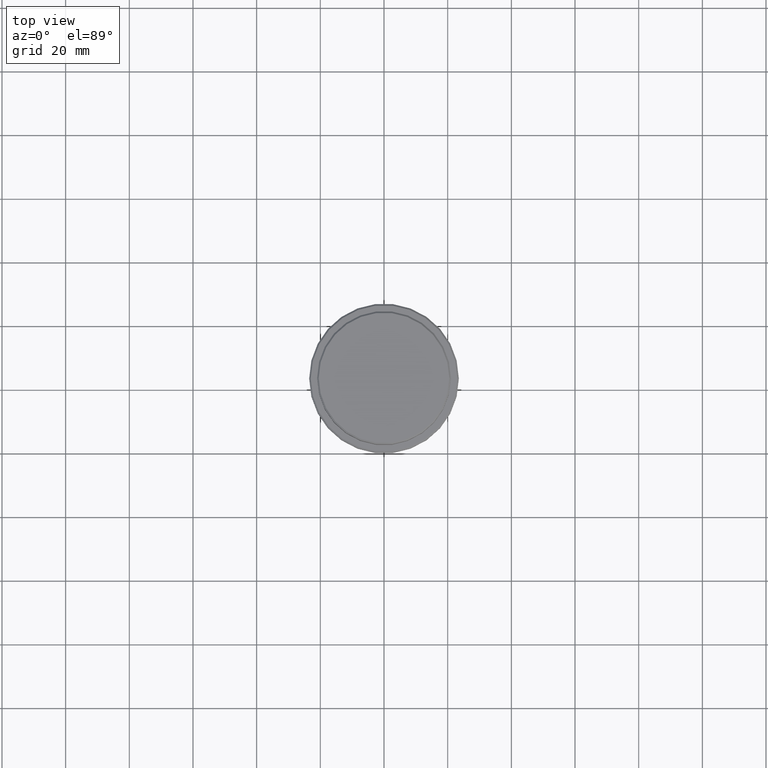
[diagram: clean part render]
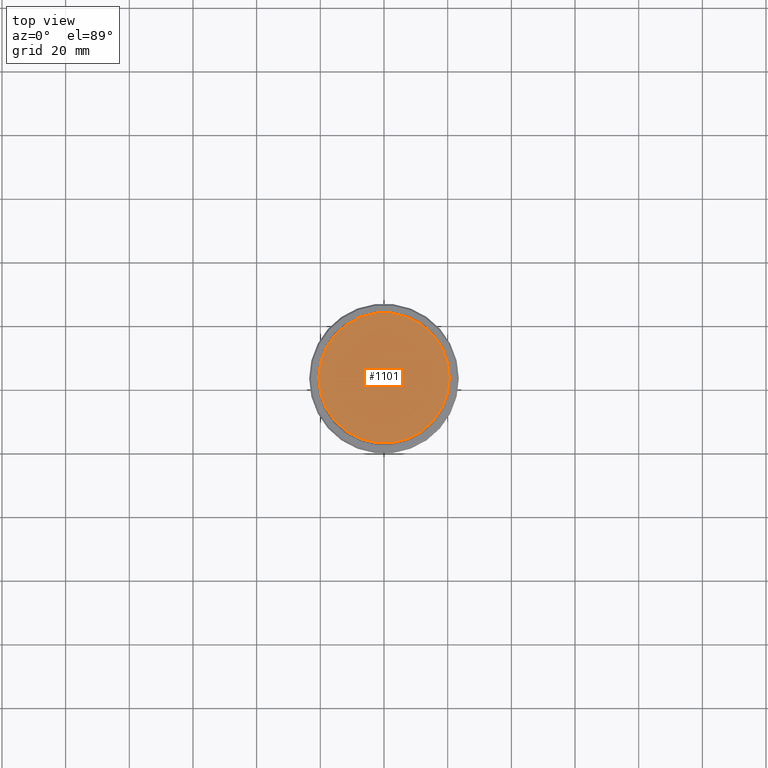
[diagram: same view with one face highlighted and labeled with its STEP entity id]
A machine part, top view. The second image highlights one B-rep face of the part: STEP entity #1101.
In plain terms, the highlighted planar face has unit normal (0, -0, 1).
Its self-contained STEP definition (entity closure, byte-faithful):
#127 = CARTESIAN_POINT ( 'NONE',  ( 0.000000000000000000, 0.000000000000000000, 0.000000000000000000 ) ) ;
#168 = DIRECTION ( 'NONE',  ( -0.000000000000000000, -0.000000000000000000, 1.000000000000000000 ) ) ;
#244 = AXIS2_PLACEMENT_3D ( 'NONE', #813, #168, #391 ) ;
#293 = ORIENTED_EDGE ( 'NONE', *, *, #320, .T. ) ;
#320 = EDGE_CURVE ( 'NONE', #1048, #718, #710, .T. ) ;
#390 = CARTESIAN_POINT ( 'NONE',  ( 0.000000000000000000, 0.000000000000000000, 0.000000000000000000 ) ) ;
#391 = DIRECTION ( 'NONE',  ( 1.000000000000000000, 0.000000000000000000, 0.000000000000000000 ) ) ;
#399 = ORIENTED_EDGE ( 'NONE', *, *, #528, .T. ) ;
#455 = DIRECTION ( 'NONE',  ( 1.000000000000000000, 0.000000000000000000, 0.000000000000000000 ) ) ;
#528 = EDGE_CURVE ( 'NONE', #718, #1048, #1305, .T. ) ;
#710 = CIRCLE ( 'NONE', #1230, 20.49999999999998934 ) ;
#718 = VERTEX_POINT ( 'NONE', #1007 ) ;
#742 = AXIS2_PLACEMENT_3D ( 'NONE', #390, #1314, #756 ) ;
#756 = DIRECTION ( 'NONE',  ( 1.000000000000000000, 0.000000000000000000, 0.000000000000000000 ) ) ;
#813 = CARTESIAN_POINT ( 'NONE',  ( 0.000000000000000000, 0.000000000000000000, 0.000000000000000000 ) ) ;
#977 = FACE_OUTER_BOUND ( 'NONE', #1094, .T. ) ;
#1007 = CARTESIAN_POINT ( 'NONE',  ( 20.49999999999998934, 2.541142108230757085E-15, 0.000000000000000000 ) ) ;
#1048 = VERTEX_POINT ( 'NONE', #1095 ) ;
#1094 = EDGE_LOOP ( 'NONE', ( #293, #399 ) ) ;
#1095 = CARTESIAN_POINT ( 'NONE',  ( -20.49999999999998934, 0.000000000000000000, 0.000000000000000000 ) ) ;
#1100 = DIRECTION ( 'NONE',  ( -0.000000000000000000, -0.000000000000000000, 1.000000000000000000 ) ) ;
#1101 = ADVANCED_FACE ( 'NONE', ( #977 ), #1103, .T. ) ;
#1103 = PLANE ( 'NONE',  #742 ) ;
#1230 = AXIS2_PLACEMENT_3D ( 'NONE', #127, #1100, #455 ) ;
#1305 = CIRCLE ( 'NONE', #244, 20.49999999999998934 ) ;
#1314 = DIRECTION ( 'NONE',  ( 0.000000000000000000, -0.000000000000000000, 1.000000000000000000 ) ) ;